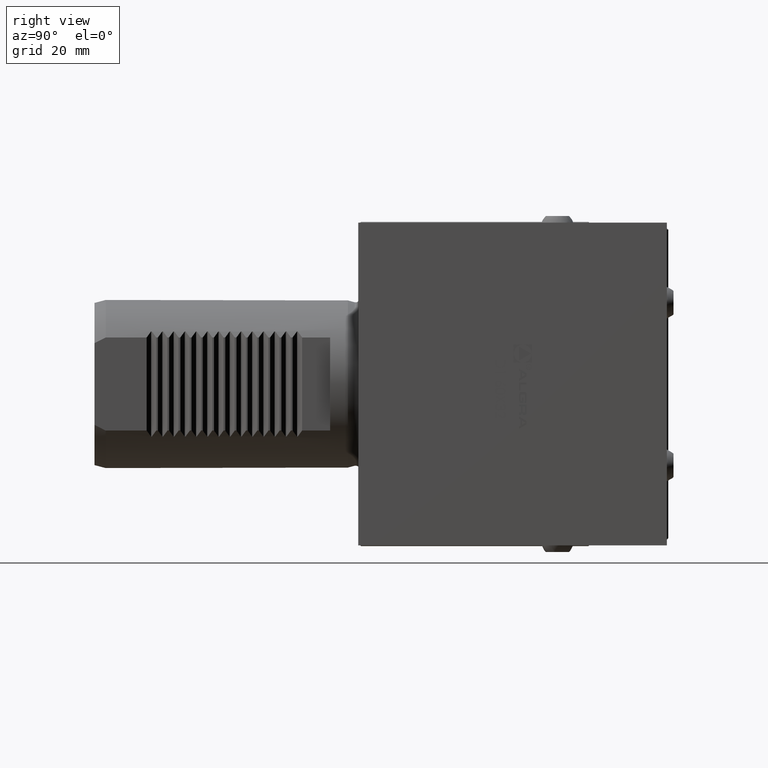
[diagram: clean part render]
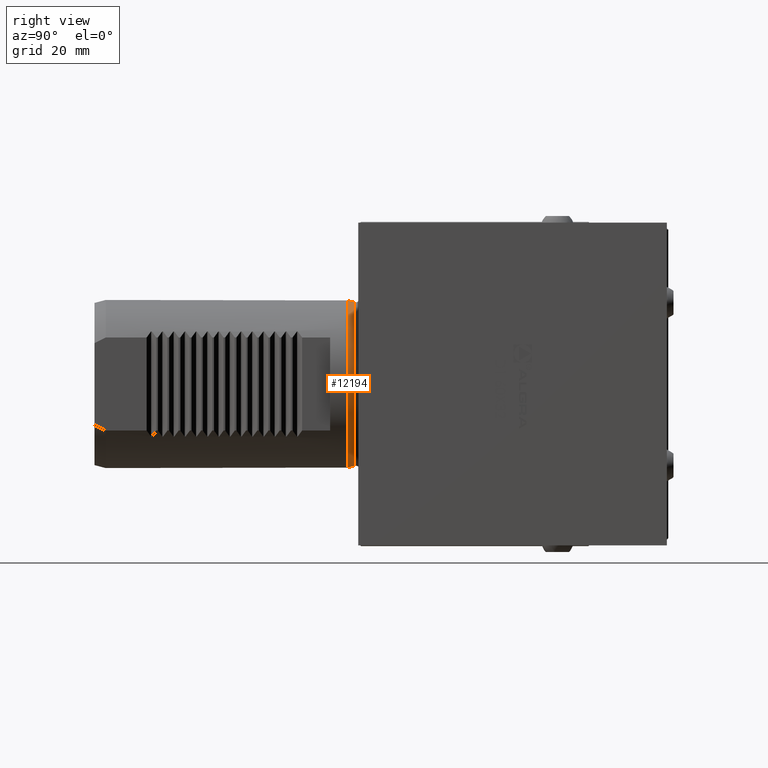
[diagram: same view with one face highlighted and labeled with its STEP entity id]
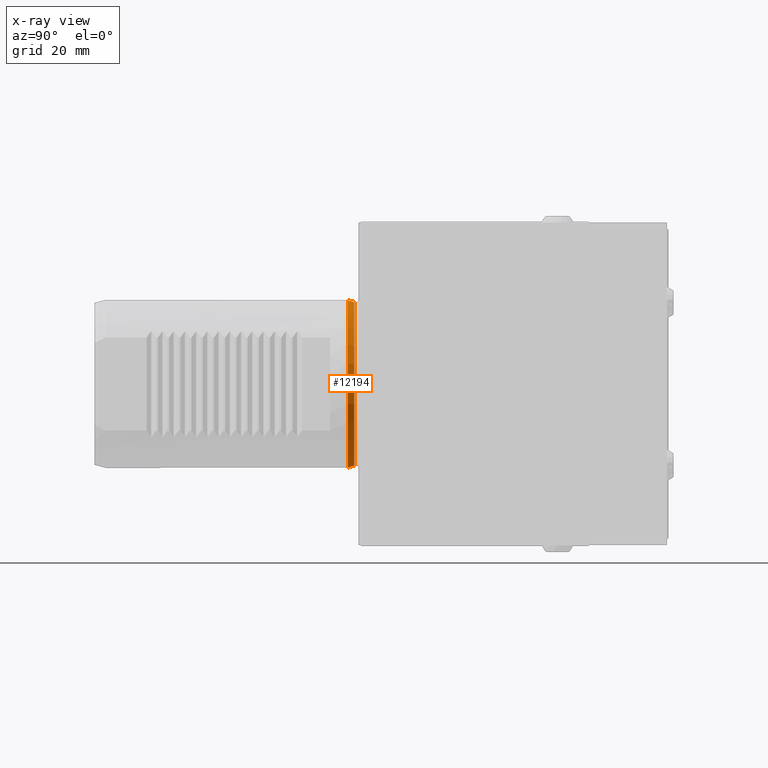
[diagram: x-ray of the same camera — body ghosted, the highlighted face saturated]
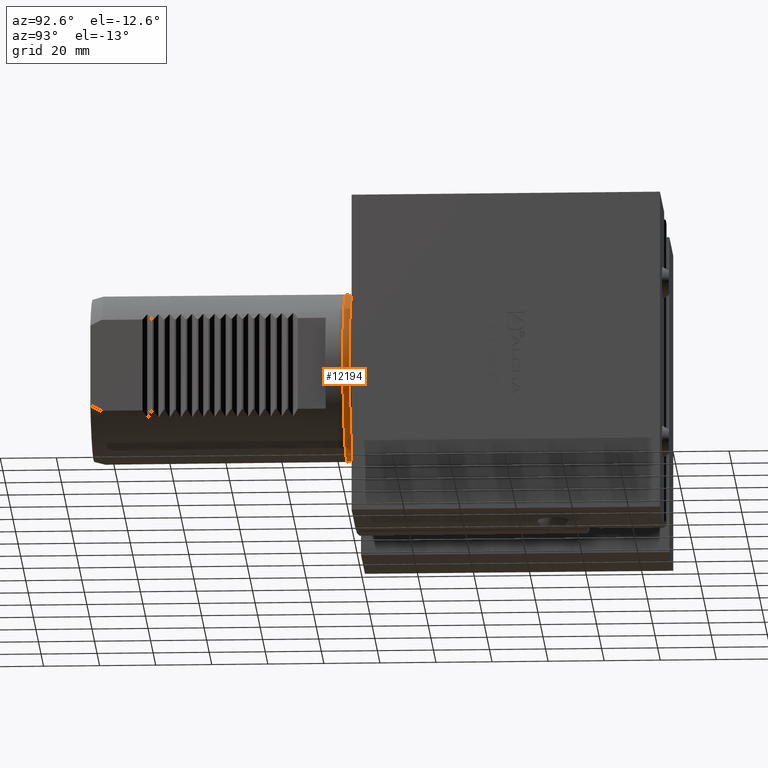
[diagram: same view with one face highlighted and labeled with its STEP entity id]
A machine part, right view. The second image highlights one B-rep face of the part: STEP entity #12194.
The next image is the same camera in x-ray: the body ghosted, the highlighted face saturated — about 0% of this face is hidden behind the body in this view.
A second angle (auxiliary view) of the same face is appended — the face is thin or edge-on in the first view.
In plain terms, the highlighted conical surface has half-angle 15 deg.
Its self-contained STEP definition (entity closure, byte-faithful):
#800 = EDGE_CURVE ( 'NONE', #1921, #1921, #12606, .T. ) ;
#908 = AXIS2_PLACEMENT_3D ( 'NONE', #8780, #15261, #2117 ) ;
#1479 = DIRECTION ( 'NONE',  ( -1.295371175675670281E-16, 1.000000000000000000, -0.000000000000000000 ) ) ;
#1713 = CARTESIAN_POINT ( 'NONE',  ( 1.848192628710210528E-16, -1.426766832098287807, 0.000000000000000000 ) ) ;
#1921 = VERTEX_POINT ( 'NONE', #4518 ) ;
#2117 = DIRECTION ( 'NONE',  ( -1.000000000000000000, -1.301042606982605321E-16, 0.000000000000000000 ) ) ;
#2328 = ORIENTED_EDGE ( 'NONE', *, *, #800, .F. ) ;
#2454 = VERTEX_POINT ( 'NONE', #13162 ) ;
#4518 = CARTESIAN_POINT ( 'NONE',  ( -29.39088900845310803, -1.426766832098291582, 0.000000000000000000 ) ) ;
#4787 = CONICAL_SURFACE ( 'NONE', #9585, 29.39088900845310803, 0.2617993877991426355 ) ;
#5352 = CIRCLE ( 'NONE', #908, 30.00000000000000000 ) ;
#5631 = FACE_OUTER_BOUND ( 'NONE', #14652, .T. ) ;
#5833 = AXIS2_PLACEMENT_3D ( 'NONE', #13500, #1479, #6797 ) ;
#6517 = EDGE_LOOP ( 'NONE', ( #2328 ) ) ;
#6700 = FACE_BOUND ( 'NONE', #6517, .T. ) ;
#6797 = DIRECTION ( 'NONE',  ( -1.000000000000000000, -1.328006042901675480E-16, 0.000000000000000000 ) ) ;
#6871 = DIRECTION ( 'NONE',  ( 1.295371175675670281E-16, -1.000000000000000000, 0.000000000000000000 ) ) ;
#8780 = CARTESIAN_POINT ( 'NONE',  ( 4.792873349999975651E-16, -3.699999999999997069, 0.000000000000000000 ) ) ;
#9585 = AXIS2_PLACEMENT_3D ( 'NONE', #1713, #6871, #15031 ) ;
#9813 = ORIENTED_EDGE ( 'NONE', *, *, #11129, .T. ) ;
#11129 = EDGE_CURVE ( 'NONE', #2454, #2454, #5352, .T. ) ;
#12194 = ADVANCED_FACE ( 'Defeature completata2_5', ( #5631, #6700 ), #4787, .T. ) ;
#12606 = CIRCLE ( 'NONE', #5833, 29.39088900845310803 ) ;
#13162 = CARTESIAN_POINT ( 'NONE',  ( -30.00000000000000000, -3.700000000000001066, 0.000000000000000000 ) ) ;
#13500 = CARTESIAN_POINT ( 'NONE',  ( 1.848192628710210528E-16, -1.426766832098287807, 0.000000000000000000 ) ) ;
#14652 = EDGE_LOOP ( 'NONE', ( #9813 ) ) ;
#15031 = DIRECTION ( 'NONE',  ( 1.000000000000000000, 1.328006042901675480E-16, 0.000000000000000000 ) ) ;
#15261 = DIRECTION ( 'NONE',  ( -1.295371175675670281E-16, 1.000000000000000000, -0.000000000000000000 ) ) ;